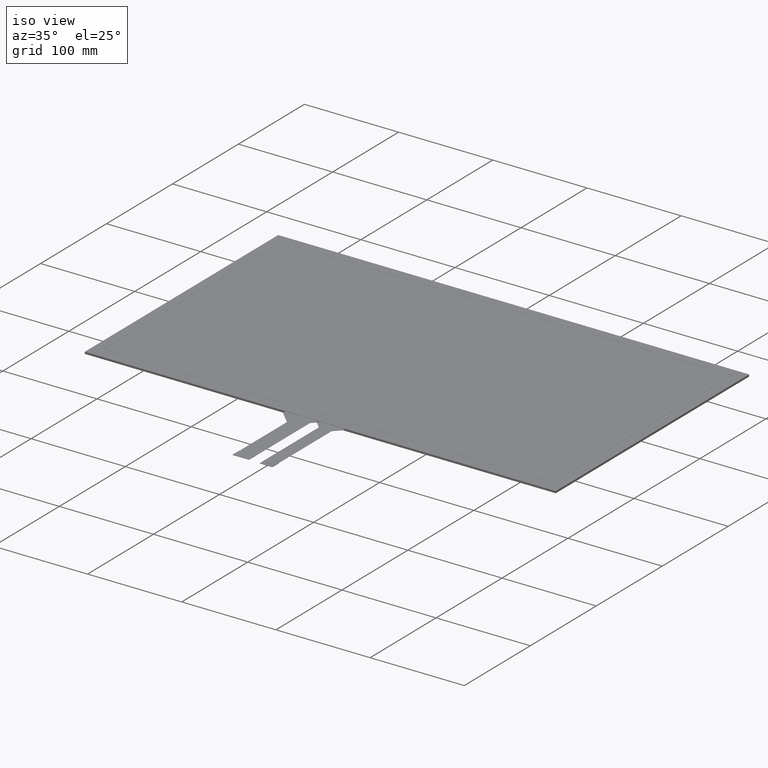
[diagram: clean part render]
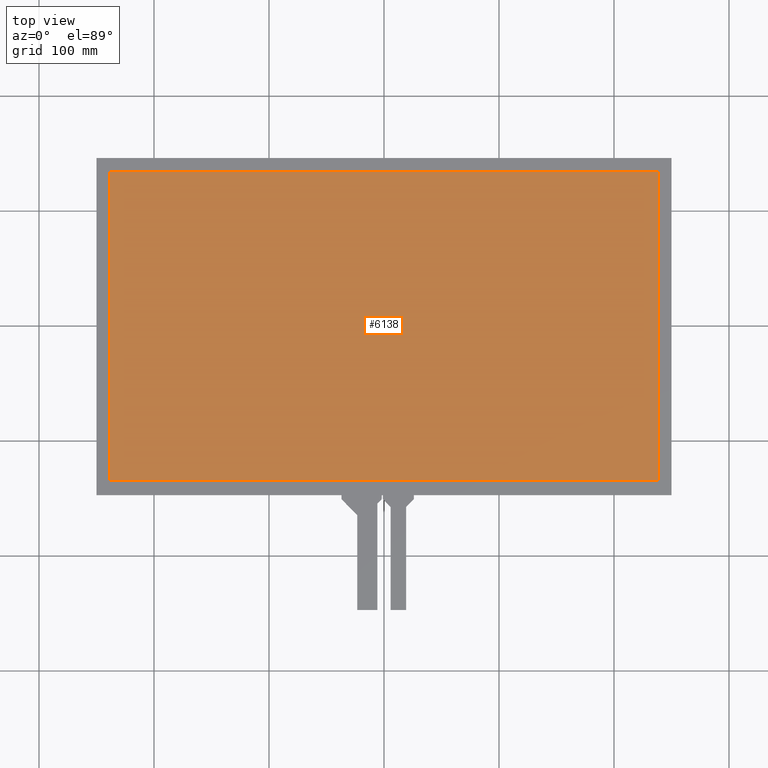
[diagram: tour spotlight — one face highlighted and labeled with its STEP entity id]
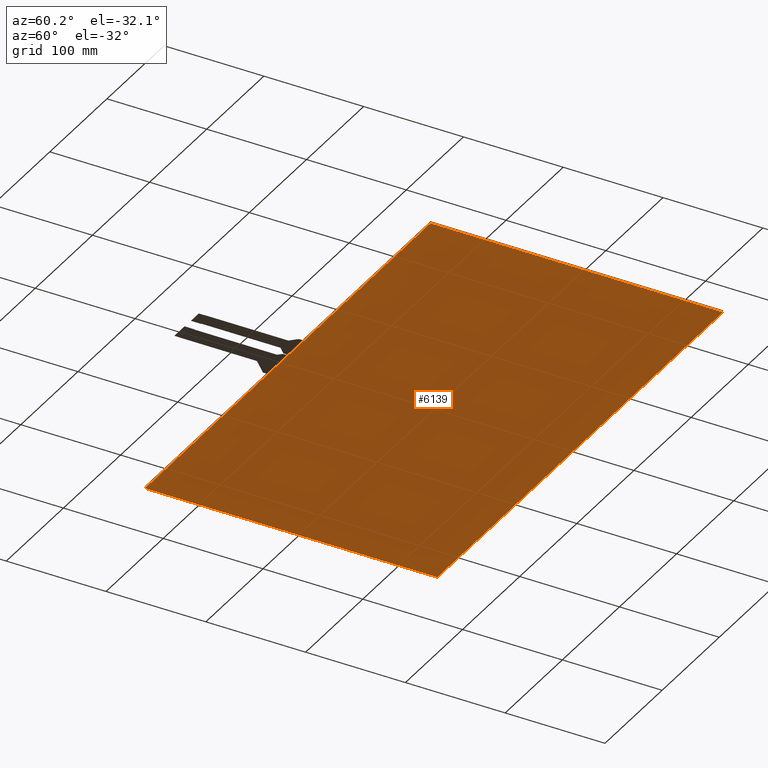
[diagram: tour spotlight — one face highlighted and labeled with its STEP entity id]
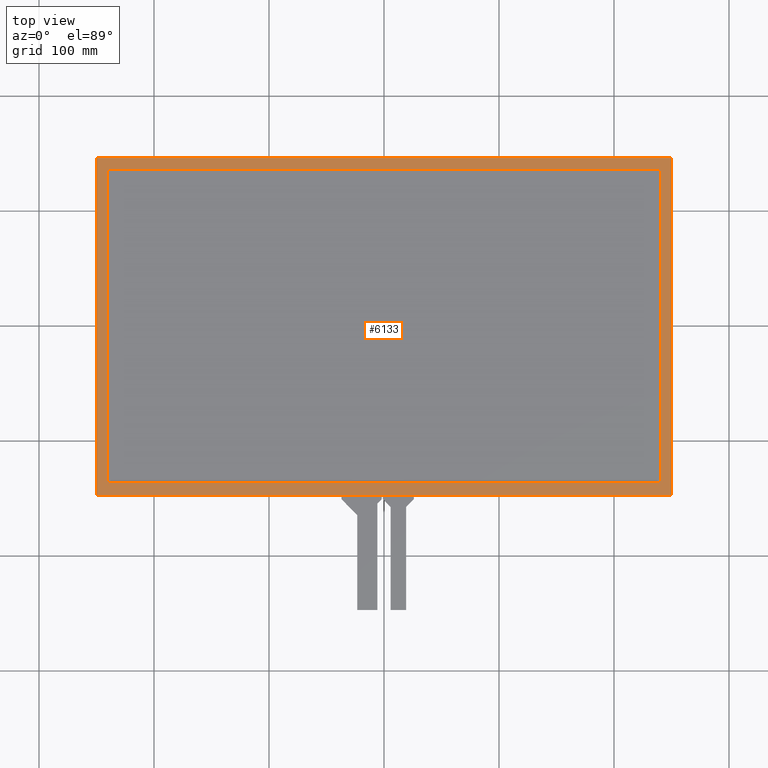
[diagram: tour spotlight — one face highlighted and labeled with its STEP entity id]
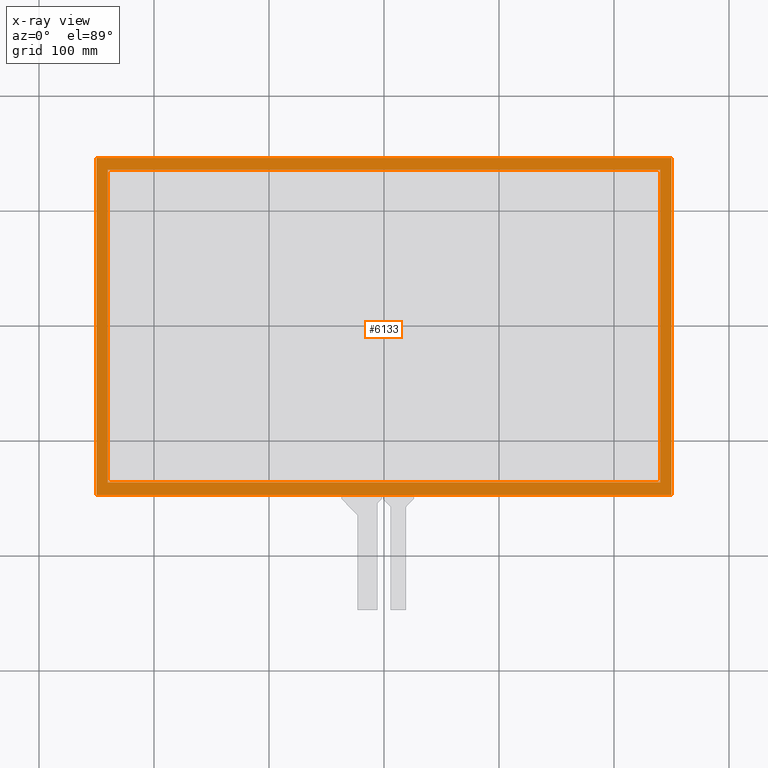
[diagram: x-ray of the same camera — body ghosted, this tour face saturated]
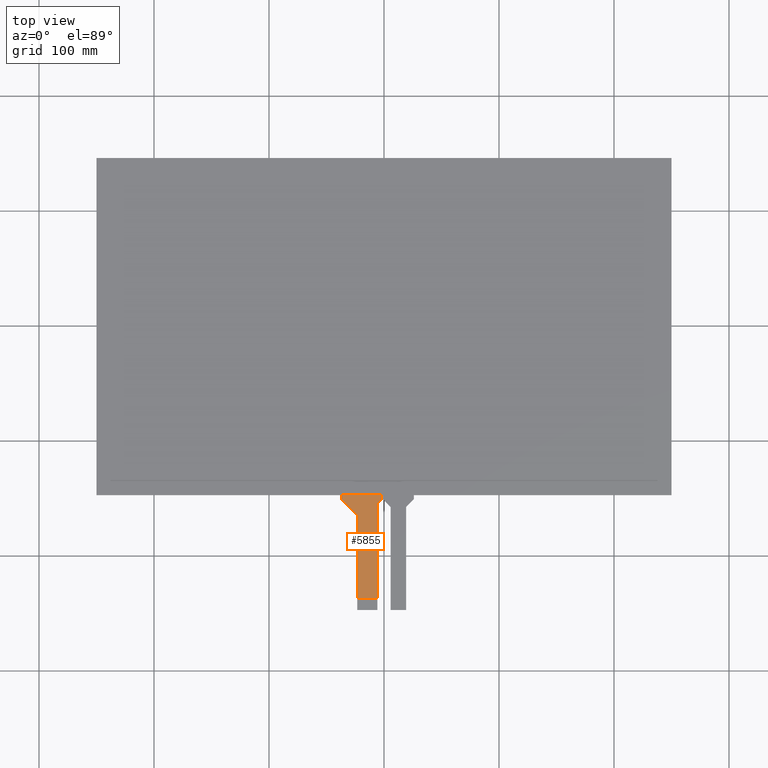
[diagram: tour spotlight — one face highlighted and labeled with its STEP entity id]
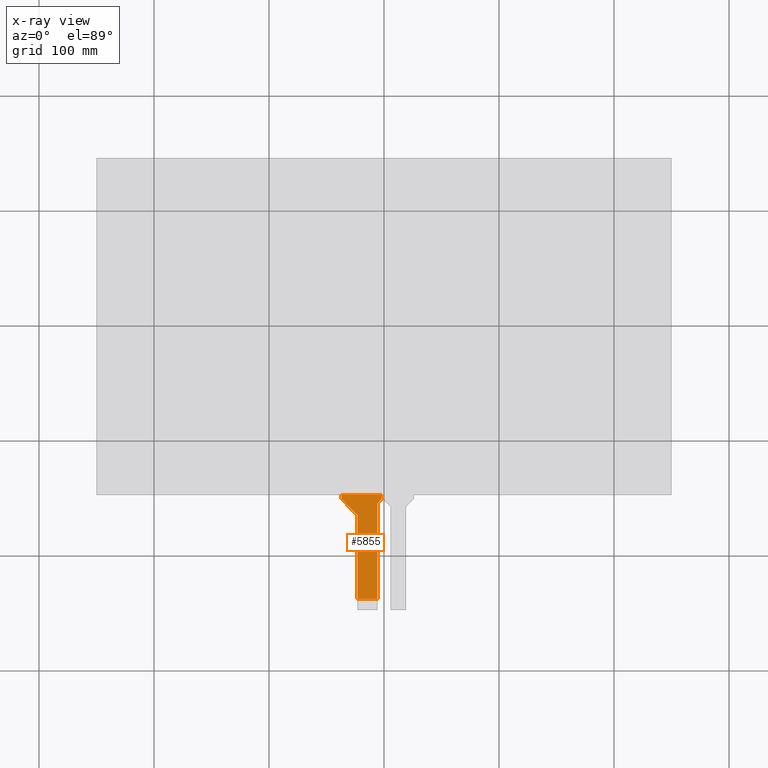
[diagram: x-ray of the same camera — body ghosted, this tour face saturated]
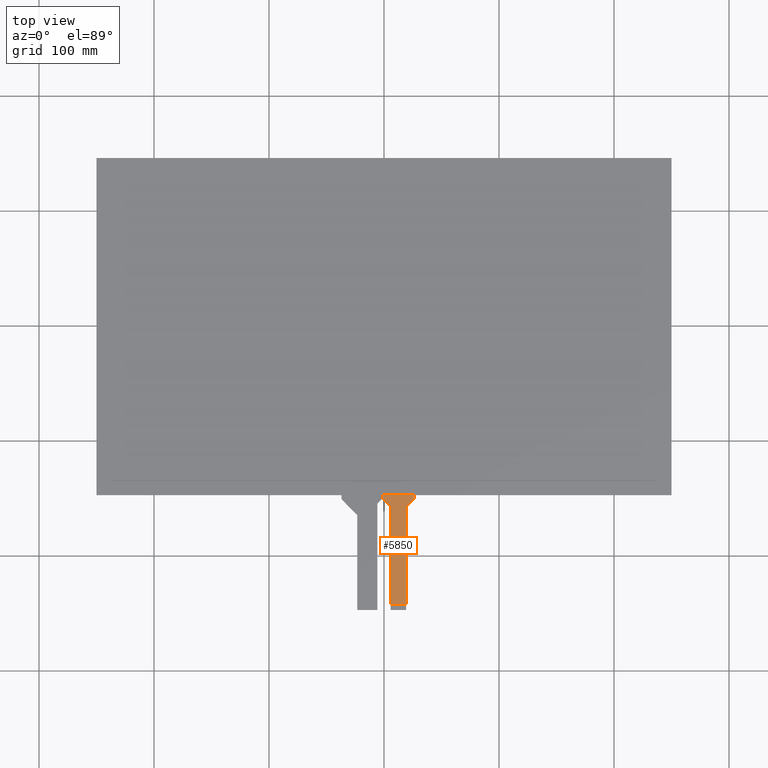
[diagram: tour spotlight — one face highlighted and labeled with its STEP entity id]
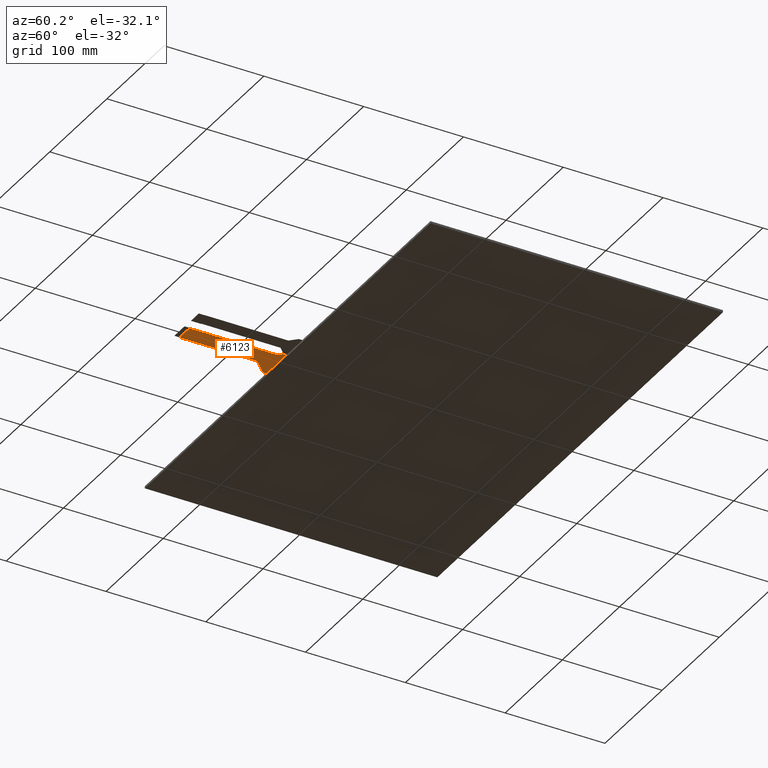
[diagram: tour spotlight — one face highlighted and labeled with its STEP entity id]
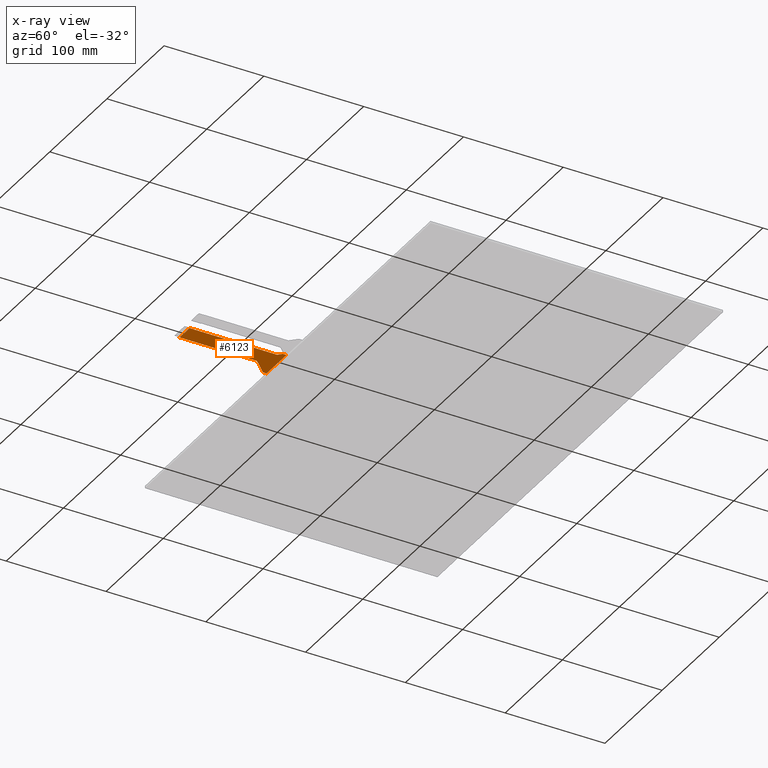
[diagram: x-ray of the same camera — body ghosted, this tour face saturated]
A machine part: a face-by-face anatomy tour. The part has 294 B-rep faces; the first image is the clean iso view, then the 6 largest visible faces are spotlighted one at a time (largest first), each with its STEP entity span.

Face 1 — top view, entity #6138. In plain terms, the highlighted planar face has unit normal (0, 0, 1).
Definition (entity closure, byte-faithful):
#368=PLANE('',#6476);
#662=FACE_OUTER_BOUND('',#960,.T.);
#960=EDGE_LOOP('',(#5826,#5827,#5828,#5829));
#1766=LINE('',#9618,#2606);
#1770=LINE('',#9626,#2610);
#1773=LINE('',#9632,#2613);
#1776=LINE('',#9637,#2616);
#2606=VECTOR('',#7890,10.);
#2610=VECTOR('',#7896,10.);
#2613=VECTOR('',#7901,10.);
#2616=VECTOR('',#7906,10.);
#3218=VERTEX_POINT('',#9616);
#3219=VERTEX_POINT('',#9617);
#3222=VERTEX_POINT('',#9625);
#3224=VERTEX_POINT('',#9631);
#4070=EDGE_CURVE('',#3218,#3219,#1766,.T.);
#4074=EDGE_CURVE('',#3222,#3218,#1770,.T.);
#4077=EDGE_CURVE('',#3224,#3222,#1773,.T.);
#4080=EDGE_CURVE('',#3219,#3224,#1776,.T.);
#5826=ORIENTED_EDGE('',*,*,#4070,.T.);
#5827=ORIENTED_EDGE('',*,*,#4080,.T.);
#5828=ORIENTED_EDGE('',*,*,#4077,.T.);
#5829=ORIENTED_EDGE('',*,*,#4074,.T.);
#6138=ADVANCED_FACE('',(#662),#368,.T.);
#6476=AXIS2_PLACEMENT_3D('',#9689,#7952,#7953);
#7890=DIRECTION('',(1.,0.,0.));
#7896=DIRECTION('',(0.,-1.,0.));
#7901=DIRECTION('',(-1.,0.,0.));
#7906=DIRECTION('',(0.,1.,0.));
#7952=DIRECTION('center_axis',(0.,0.,1.));
#7953=DIRECTION('ref_axis',(1.,0.,0.));
#9616=CARTESIAN_POINT('',(-238.32,-134.055,0.));
#9617=CARTESIAN_POINT('',(238.32,-134.055,0.));
#9618=CARTESIAN_POINT('',(-119.16,-134.055,0.));
#9625=CARTESIAN_POINT('',(-238.32,134.055,0.));
#9626=CARTESIAN_POINT('',(-238.32,66.7775,0.));
#9631=CARTESIAN_POINT('',(238.32,134.055,0.));
#9632=CARTESIAN_POINT('',(119.16,134.055,0.));
#9637=CARTESIAN_POINT('',(238.32,-67.2775,0.));
#9689=CARTESIAN_POINT('Origin',(-3.5527136788005E-14,-0.499999999999998,
0.));

Face 2 — auxiliary view, entity #6139. In plain terms, the highlighted planar face has unit normal (0, 0, -1).
Definition (entity closure, byte-faithful):
#369=PLANE('',#6477);
#663=FACE_OUTER_BOUND('',#961,.T.);
#961=EDGE_LOOP('',(#5830,#5831,#5832,#5833));
#1795=LINE('',#9677,#2635);
#1797=LINE('',#9681,#2637);
#1799=LINE('',#9685,#2639);
#1801=LINE('',#9688,#2641);
#2635=VECTOR('',#7939,10.);
#2637=VECTOR('',#7943,10.);
#2639=VECTOR('',#7947,10.);
#2641=VECTOR('',#7951,10.);
#3238=VERTEX_POINT('',#9674);
#3239=VERTEX_POINT('',#9676);
#3240=VERTEX_POINT('',#9680);
#3241=VERTEX_POINT('',#9684);
#4099=EDGE_CURVE('',#3239,#3238,#1795,.T.);
#4101=EDGE_CURVE('',#3240,#3239,#1797,.T.);
#4103=EDGE_CURVE('',#3241,#3240,#1799,.T.);
#4105=EDGE_CURVE('',#3238,#3241,#1801,.T.);
#5830=ORIENTED_EDGE('',*,*,#4105,.T.);
#5831=ORIENTED_EDGE('',*,*,#4103,.T.);
#5832=ORIENTED_EDGE('',*,*,#4101,.T.);
#5833=ORIENTED_EDGE('',*,*,#4099,.T.);
#6139=ADVANCED_FACE('',(#663),#369,.T.);
#6477=AXIS2_PLACEMENT_3D('',#9690,#7954,#7955);
#7939=DIRECTION('',(-2.42340632933186E-16,1.,0.));
#7943=DIRECTION('',(-1.,-1.06581410364015E-16,0.));
#7947=DIRECTION('',(0.,-1.,0.));
#7951=DIRECTION('',(1.,0.,0.));
#7954=DIRECTION('center_axis',(0.,0.,-1.));
#7955=DIRECTION('ref_axis',(-1.,0.,0.));
#9674=CARTESIAN_POINT('',(-250.,146.1,-2.1));
#9676=CARTESIAN_POINT('',(-250.,-147.1,-2.1));
#9677=CARTESIAN_POINT('',(-250.,146.1,-2.1));
#9680=CARTESIAN_POINT('',(250.,-147.1,-2.1));
#9681=CARTESIAN_POINT('',(-250.,-147.1,-2.1));
#9684=CARTESIAN_POINT('',(250.,146.1,-2.1));
#9685=CARTESIAN_POINT('',(250.,-147.1,-2.1));
#9688=CARTESIAN_POINT('',(250.,146.1,-2.1));
#9690=CARTESIAN_POINT('Origin',(-3.5527136788005E-14,-0.500000000000007,
-2.1));

Face 3 — top view, entity #6133. An x-ray twin of the same camera follows (body ghosted, this face saturated) — the face is partly hidden behind the body. In plain terms, the highlighted planar face has unit normal (0, 0, 1).
Definition (entity closure, byte-faithful):
#85=FACE_BOUND('',#953,.T.);
#363=PLANE('',#6471);
#657=FACE_OUTER_BOUND('',#952,.T.);
#952=EDGE_LOOP('',(#5794,#5795,#5796,#5797));
#953=EDGE_LOOP('',(#5798,#5799,#5800,#5801));
#1778=LINE('',#9642,#2618);
#1782=LINE('',#9650,#2622);
#1785=LINE('',#9656,#2625);
#1788=LINE('',#9661,#2628);
#1790=LINE('',#9667,#2630);
#1791=LINE('',#9669,#2631);
#1792=LINE('',#9671,#2632);
#1793=LINE('',#9672,#2633);
#2618=VECTOR('',#7910,10.);
#2622=VECTOR('',#7916,10.);
#2625=VECTOR('',#7921,10.);
#2628=VECTOR('',#7926,10.);
#2630=VECTOR('',#7932,10.);
#2631=VECTOR('',#7933,10.);
#2632=VECTOR('',#7934,10.);
#2633=VECTOR('',#7935,10.);
#3226=VERTEX_POINT('',#9640);
#3227=VERTEX_POINT('',#9641);
#3230=VERTEX_POINT('',#9649);
#3232=VERTEX_POINT('',#9655);
#3234=VERTEX_POINT('',#9665);
#3235=VERTEX_POINT('',#9666);
#3236=VERTEX_POINT('',#9668);
#3237=VERTEX_POINT('',#9670);
#4082=EDGE_CURVE('',#3226,#3227,#1778,.T.);
#4086=EDGE_CURVE('',#3230,#3226,#1782,.T.);
#4089=EDGE_CURVE('',#3232,#3230,#1785,.T.);
#4092=EDGE_CURVE('',#3227,#3232,#1788,.T.);
#4094=EDGE_CURVE('',#3234,#3235,#1790,.T.);
#4095=EDGE_CURVE('',#3235,#3236,#1791,.T.);
#4096=EDGE_CURVE('',#3236,#3237,#1792,.T.);
#4097=EDGE_CURVE('',#3237,#3234,#1793,.T.);
#5794=ORIENTED_EDGE('',*,*,#4094,.T.);
#5795=ORIENTED_EDGE('',*,*,#4095,.T.);
#5796=ORIENTED_EDGE('',*,*,#4096,.T.);
#5797=ORIENTED_EDGE('',*,*,#4097,.T.);
#5798=ORIENTED_EDGE('',*,*,#4082,.T.);
#5799=ORIENTED_EDGE('',*,*,#4092,.T.);
#5800=ORIENTED_EDGE('',*,*,#4089,.T.);
#5801=ORIENTED_EDGE('',*,*,#4086,.T.);
#6133=ADVANCED_FACE('',(#657,#85),#363,.T.);
#6471=AXIS2_PLACEMENT_3D('',#9664,#7930,#7931);
#7910=DIRECTION('',(-2.61123345617618E-16,1.,0.));
#7916=DIRECTION('',(-1.,-1.10874469836068E-16,0.));
#7921=DIRECTION('',(0.,-1.,0.));
#7926=DIRECTION('',(1.,0.,0.));
#7930=DIRECTION('center_axis',(0.,0.,1.));
#7931=DIRECTION('ref_axis',(1.,0.,0.));
#7932=DIRECTION('',(-1.,0.,0.));
#7933=DIRECTION('',(2.42340632933186E-16,-1.,0.));
#7934=DIRECTION('',(1.,1.06581410364015E-16,0.));
#7935=DIRECTION('',(0.,1.,0.));
#9640=CARTESIAN_POINT('',(-240.32,-136.055,0.));
#9641=CARTESIAN_POINT('',(-240.32,136.055,0.));
#9642=CARTESIAN_POINT('',(-240.32,-68.2775000000001,0.));
#9649=CARTESIAN_POINT('',(240.32,-136.055,0.));
#9650=CARTESIAN_POINT('',(120.16,-136.055,0.));
#9655=CARTESIAN_POINT('',(240.32,136.055,0.));
#9656=CARTESIAN_POINT('',(240.32,67.7775,0.));
#9661=CARTESIAN_POINT('',(-120.16,136.055,0.));
#9664=CARTESIAN_POINT('Origin',(-3.5527136788005E-14,-0.499999999999998,
0.));
#9665=CARTESIAN_POINT('',(250.,146.1,0.));
#9666=CARTESIAN_POINT('',(-250.,146.1,0.));
#9667=CARTESIAN_POINT('',(250.,146.1,0.));
#9668=CARTESIAN_POINT('',(-250.,-147.1,0.));
#9669=CARTESIAN_POINT('',(-250.,146.1,0.));
#9670=CARTESIAN_POINT('',(250.,-147.1,0.));
#9671=CARTESIAN_POINT('',(-250.,-147.1,0.));
#9672=CARTESIAN_POINT('',(250.,-147.1,0.));

Face 4 — top view, entity #5855. An x-ray twin of the same camera follows (body ghosted, this face saturated) — the face is partly hidden behind the body. In plain terms, the highlighted planar face has unit normal (0, 0, 1).
Definition (entity closure, byte-faithful):
#93=PLANE('',#6179);
#379=FACE_OUTER_BOUND('',#673,.T.);
#673=EDGE_LOOP('',(#4158,#4159,#4160,#4161,#4162,#4163,#4164,#4165,#4166,
#4167,#4168,#4169));
#983=LINE('',#8019,#1823);
#993=LINE('',#8042,#1833);
#994=LINE('',#8045,#1834);
#995=LINE('',#8047,#1835);
#996=LINE('',#8049,#1836);
#997=LINE('',#8053,#1837);
#998=LINE('',#8057,#1838);
#999=LINE('',#8058,#1839);
#1823=VECTOR('',#6531,10.);
#1833=VECTOR('',#6549,10.);
#1834=VECTOR('',#6552,10.);
#1835=VECTOR('',#6553,10.);
#1836=VECTOR('',#6554,10.);
#1837=VECTOR('',#6557,10.);
#1838=VECTOR('',#6560,10.);
#1839=VECTOR('',#6561,10.);
#2648=CIRCLE('',#6172,1.);
#2651=CIRCLE('',#6177,1.);
#2652=CIRCLE('',#6180,1.);
#2653=CIRCLE('',#6181,1.);
#2687=VERTEX_POINT('',#8009);
#2688=VERTEX_POINT('',#8010);
#2691=VERTEX_POINT('',#8018);
#2699=VERTEX_POINT('',#8035);
#2700=VERTEX_POINT('',#8037);
#2701=VERTEX_POINT('',#8044);
#2702=VERTEX_POINT('',#8046);
#2703=VERTEX_POINT('',#8048);
#2704=VERTEX_POINT('',#8050);
#2705=VERTEX_POINT('',#8052);
#2706=VERTEX_POINT('',#8054);
#2707=VERTEX_POINT('',#8056);
#3267=EDGE_CURVE('',#2687,#2688,#2648,.T.);
#3271=EDGE_CURVE('',#2691,#2688,#983,.T.);
#3280=EDGE_CURVE('',#2699,#2700,#2651,.T.);
#3283=EDGE_CURVE('',#2687,#2700,#993,.T.);
#3284=EDGE_CURVE('',#2699,#2701,#994,.T.);
#3285=EDGE_CURVE('',#2702,#2701,#995,.T.);
#3286=EDGE_CURVE('',#2702,#2703,#996,.T.);
#3287=EDGE_CURVE('',#2704,#2703,#2652,.T.);
#3288=EDGE_CURVE('',#2704,#2705,#997,.T.);
#3289=EDGE_CURVE('',#2706,#2705,#2653,.T.);
#3290=EDGE_CURVE('',#2706,#2707,#998,.T.);
#3291=EDGE_CURVE('',#2707,#2691,#999,.T.);
#4158=ORIENTED_EDGE('',*,*,#3280,.F.);
#4159=ORIENTED_EDGE('',*,*,#3284,.T.);
#4160=ORIENTED_EDGE('',*,*,#3285,.F.);
#4161=ORIENTED_EDGE('',*,*,#3286,.T.);
#4162=ORIENTED_EDGE('',*,*,#3287,.F.);
#4163=ORIENTED_EDGE('',*,*,#3288,.T.);
#4164=ORIENTED_EDGE('',*,*,#3289,.F.);
#4165=ORIENTED_EDGE('',*,*,#3290,.T.);
#4166=ORIENTED_EDGE('',*,*,#3291,.T.);
#4167=ORIENTED_EDGE('',*,*,#3271,.T.);
#4168=ORIENTED_EDGE('',*,*,#3267,.F.);
#4169=ORIENTED_EDGE('',*,*,#3283,.T.);
#5855=ADVANCED_FACE('',(#379),#93,.T.);
#6172=AXIS2_PLACEMENT_3D('',#8011,#6523,#6524);
#6177=AXIS2_PLACEMENT_3D('',#8038,#6543,#6544);
#6179=AXIS2_PLACEMENT_3D('',#8043,#6550,#6551);
#6180=AXIS2_PLACEMENT_3D('',#8051,#6555,#6556);
#6181=AXIS2_PLACEMENT_3D('',#8055,#6558,#6559);
#6523=DIRECTION('center_axis',(0.,0.,1.));
#6524=DIRECTION('ref_axis',(-0.923531889914345,0.383521639951696,0.));
#6531=DIRECTION('',(-4.79248887762603E-16,1.,0.));
#6543=DIRECTION('center_axis',(0.,0.,-1.));
#6544=DIRECTION('ref_axis',(0.923531889914345,-0.383521639951696,0.));
#6549=DIRECTION('',(0.708388929935267,0.705822303377534,0.));
#6550=DIRECTION('center_axis',(0.,0.,1.));
#6551=DIRECTION('ref_axis',(1.,0.,0.));
#6552=DIRECTION('',(-1.2335811384724E-15,1.,0.));
#6553=DIRECTION('',(1.,1.06581410364015E-16,0.));
#6554=DIRECTION('',(0.,-1.,0.));
#6555=DIRECTION('center_axis',(0.,0.,-1.));
#6556=DIRECTION('ref_axis',(-0.92422641434209,-0.381844909658835,0.));
#6557=DIRECTION('',(0.705822303377532,-0.708388929935268,0.));
#6558=DIRECTION('center_axis',(0.,0.,1.));
#6559=DIRECTION('ref_axis',(0.924226414342097,0.381844909658817,0.));
#6560=DIRECTION('',(1.61291480575083E-16,-1.,0.));
#6561=DIRECTION('',(1.,0.,0.));
#8009=CARTESIAN_POINT('',(-5.45582230337757,-154.143301208075,-0.2));
#8010=CARTESIAN_POINT('',(-5.75000000000004,-154.851690138011,-0.2));
#8011=CARTESIAN_POINT('Origin',(-4.75000000000004,-154.851690138011,-0.2));
#8018=CARTESIAN_POINT('',(-5.74999999999999,-237.1,-0.2));
#8019=CARTESIAN_POINT('',(-5.74999999999999,-247.1,-0.2));
#8035=CARTESIAN_POINT('',(-2.00000000000004,-150.284722905468,-0.2));
#8037=CARTESIAN_POINT('',(-2.2941776966225,-150.993111835403,-0.2));
#8038=CARTESIAN_POINT('Origin',(-3.00000000000004,-150.284722905468,-0.2));
#8042=CARTESIAN_POINT('',(-5.75000000000004,-154.436413043478,-0.2));
#8043=CARTESIAN_POINT('Origin',(-19.5,-197.1,-0.2));
#8044=CARTESIAN_POINT('',(-2.00000000000004,-147.1,-0.2));
#8045=CARTESIAN_POINT('',(-2.00000000000004,-150.7,-0.2));
#8046=CARTESIAN_POINT('',(-37.,-147.1,-0.2));
#8047=CARTESIAN_POINT('',(115.25,-147.1,-0.2));
#8048=CARTESIAN_POINT('',(-37.,-150.286849170578,-0.2));
#8049=CARTESIAN_POINT('',(-37.,-147.1,-0.2));
#8050=CARTESIAN_POINT('',(-36.7083889299353,-150.992671473956,-0.2));
#8051=CARTESIAN_POINT('Origin',(-36.,-150.286849170578,-0.2));
#8052=CARTESIAN_POINT('',(-23.5416110700647,-164.207328526044,-0.2));
#8053=CARTESIAN_POINT('',(-37.,-150.7,-0.2));
#8054=CARTESIAN_POINT('',(-23.25,-164.913150829422,-0.2));
#8055=CARTESIAN_POINT('Origin',(-24.25,-164.913150829422,-0.2));
#8056=CARTESIAN_POINT('',(-23.25,-237.1,-0.2));
#8057=CARTESIAN_POINT('',(-23.25,-164.5,-0.2));
#8058=CARTESIAN_POINT('',(-12.625,-237.1,-0.2));

Face 5 — top view, entity #5850. In plain terms, the highlighted planar face has unit normal (0, 0, 1).
Definition (entity closure, byte-faithful):
#90=PLANE('',#6168);
#374=FACE_OUTER_BOUND('',#668,.T.);
#668=EDGE_LOOP('',(#4126,#4127,#4128,#4129,#4130,#4131,#4132,#4133,#4134,
#4135,#4136,#4137));
#964=LINE('',#7968,#1804);
#974=LINE('',#7991,#1814);
#975=LINE('',#7994,#1815);
#976=LINE('',#7996,#1816);
#977=LINE('',#7998,#1817);
#978=LINE('',#8002,#1818);
#979=LINE('',#8006,#1819);
#980=LINE('',#8007,#1820);
#1804=VECTOR('',#6490,10.);
#1814=VECTOR('',#6508,10.);
#1815=VECTOR('',#6511,10.);
#1816=VECTOR('',#6512,10.);
#1817=VECTOR('',#6513,10.);
#1818=VECTOR('',#6516,10.);
#1819=VECTOR('',#6519,10.);
#1820=VECTOR('',#6520,10.);
#2642=CIRCLE('',#6161,1.);
#2645=CIRCLE('',#6166,1.);
#2646=CIRCLE('',#6169,1.);
#2647=CIRCLE('',#6170,1.);
#2666=VERTEX_POINT('',#7958);
#2667=VERTEX_POINT('',#7959);
#2670=VERTEX_POINT('',#7967);
#2678=VERTEX_POINT('',#7984);
#2679=VERTEX_POINT('',#7986);
#2680=VERTEX_POINT('',#7993);
#2681=VERTEX_POINT('',#7995);
#2682=VERTEX_POINT('',#7997);
#2683=VERTEX_POINT('',#7999);
#2684=VERTEX_POINT('',#8001);
#2685=VERTEX_POINT('',#8003);
#2686=VERTEX_POINT('',#8005);
#3242=EDGE_CURVE('',#2666,#2667,#2642,.T.);
#3246=EDGE_CURVE('',#2670,#2667,#964,.T.);
#3255=EDGE_CURVE('',#2678,#2679,#2645,.T.);
#3258=EDGE_CURVE('',#2666,#2679,#974,.T.);
#3259=EDGE_CURVE('',#2678,#2680,#975,.T.);
#3260=EDGE_CURVE('',#2681,#2680,#976,.T.);
#3261=EDGE_CURVE('',#2681,#2682,#977,.T.);
#3262=EDGE_CURVE('',#2683,#2682,#2646,.T.);
#3263=EDGE_CURVE('',#2683,#2684,#978,.T.);
#3264=EDGE_CURVE('',#2685,#2684,#2647,.T.);
#3265=EDGE_CURVE('',#2685,#2686,#979,.T.);
#3266=EDGE_CURVE('',#2686,#2670,#980,.T.);
#4126=ORIENTED_EDGE('',*,*,#3255,.F.);
#4127=ORIENTED_EDGE('',*,*,#3259,.T.);
#4128=ORIENTED_EDGE('',*,*,#3260,.F.);
#4129=ORIENTED_EDGE('',*,*,#3261,.T.);
#4130=ORIENTED_EDGE('',*,*,#3262,.F.);
#4131=ORIENTED_EDGE('',*,*,#3263,.T.);
#4132=ORIENTED_EDGE('',*,*,#3264,.F.);
#4133=ORIENTED_EDGE('',*,*,#3265,.T.);
#4134=ORIENTED_EDGE('',*,*,#3266,.T.);
#4135=ORIENTED_EDGE('',*,*,#3246,.T.);
#4136=ORIENTED_EDGE('',*,*,#3242,.F.);
#4137=ORIENTED_EDGE('',*,*,#3258,.T.);
#5850=ADVANCED_FACE('',(#374),#90,.T.);
#6161=AXIS2_PLACEMENT_3D('',#7960,#6482,#6483);
#6166=AXIS2_PLACEMENT_3D('',#7987,#6502,#6503);
#6168=AXIS2_PLACEMENT_3D('',#7992,#6509,#6510);
#6169=AXIS2_PLACEMENT_3D('',#8000,#6514,#6515);
#6170=AXIS2_PLACEMENT_3D('',#8004,#6517,#6518);
#6482=DIRECTION('center_axis',(0.,0.,1.));
#6483=DIRECTION('ref_axis',(-0.923166632761983,0.384400010607313,0.));
#6490=DIRECTION('',(-4.9508273115949E-16,1.,0.));
#6502=DIRECTION('center_axis',(0.,0.,-1.));
#6503=DIRECTION('ref_axis',(0.923166632761977,-0.384400010607327,0.));
#6508=DIRECTION('',(0.709730526852055,0.704473263690187,0.));
#6509=DIRECTION('center_axis',(0.,0.,1.));
#6510=DIRECTION('ref_axis',(1.,0.,0.));
#6511=DIRECTION('',(2.46716227694481E-15,1.,0.));
#6512=DIRECTION('',(1.,1.06581410364015E-16,0.));
#6513=DIRECTION('',(1.23358113847239E-15,-1.,0.));
#6514=DIRECTION('center_axis',(0.,0.,-1.));
#6515=DIRECTION('ref_axis',(-0.924589240379761,-0.380965532002538,0.));
#6516=DIRECTION('',(0.704473263690187,-0.709730526852056,0.));
#6517=DIRECTION('center_axis',(0.,0.,1.));
#6518=DIRECTION('ref_axis',(0.92458924037976,0.38096553200254,0.));
#6519=DIRECTION('',(1.48691202871585E-16,-1.,0.));
#6520=DIRECTION('',(1.,0.,0.));
#7958=CARTESIAN_POINT('',(19.5455267363098,-157.106662350626,-0.2));
#7959=CARTESIAN_POINT('',(19.25,-157.816392877478,-0.2));
#7960=CARTESIAN_POINT('Origin',(20.25,-157.816392877478,-0.2));
#7967=CARTESIAN_POINT('',(19.25,-242.1,-0.2));
#7968=CARTESIAN_POINT('',(19.25,-247.1,-0.2));
#7984=CARTESIAN_POINT('',(26.,-150.283607122522,-0.2));
#7986=CARTESIAN_POINT('',(25.7044732636902,-150.993337649374,-0.2));
#7987=CARTESIAN_POINT('Origin',(25.,-150.283607122522,-0.2));
#7991=CARTESIAN_POINT('',(19.25,-157.4,-0.2));
#7992=CARTESIAN_POINT('Origin',(12.5,-197.1,-0.2));
#7993=CARTESIAN_POINT('',(26.,-147.1,-0.2));
#7994=CARTESIAN_POINT('',(26.,-150.7,-0.2));
#7995=CARTESIAN_POINT('',(-0.999999999999979,-147.1,-0.2));
#7996=CARTESIAN_POINT('',(131.25,-147.1,-0.2));
#7997=CARTESIAN_POINT('',(-0.999999999999975,-150.287962399556,-0.2));
#7998=CARTESIAN_POINT('',(-0.999999999999979,-147.1,-0.2));
#7999=CARTESIAN_POINT('',(-0.709730526852037,-150.992435663246,-0.2));
#8000=CARTESIAN_POINT('Origin',(2.60902410786912E-14,-150.287962399556,
-0.2));
#8001=CARTESIAN_POINT('',(5.45973052685208,-157.207937471082,-0.2));
#8002=CARTESIAN_POINT('',(-0.999999999999974,-150.7,-0.2));
#8003=CARTESIAN_POINT('',(5.75000000000002,-157.912410734772,-0.2));
#8004=CARTESIAN_POINT('Origin',(4.75000000000002,-157.912410734772,-0.2));
#8005=CARTESIAN_POINT('',(5.75000000000004,-242.1,-0.2));
#8006=CARTESIAN_POINT('',(5.75000000000002,-157.500373134328,-0.2));
#8007=CARTESIAN_POINT('',(9.12500000000003,-242.1,-0.2));

Face 6 — auxiliary view, entity #6123. An x-ray twin of the same camera follows (body ghosted, this face saturated) — the face is partly hidden behind the body. In plain terms, the highlighted planar face has unit normal (0, 0, -1).
Definition (entity closure, byte-faithful):
#353=PLANE('',#6461);
#647=FACE_OUTER_BOUND('',#941,.T.);
#941=EDGE_LOOP('',(#5742,#5743,#5744,#5745,#5746,#5747,#5748,#5749,#5750,
#5751,#5752,#5753));
#989=LINE('',#8030,#1829);
#992=LINE('',#8041,#1832);
#1008=LINE('',#8082,#1848);
#1746=LINE('',#9576,#2586);
#1747=LINE('',#9578,#2587);
#1762=LINE('',#9608,#2602);
#1763=LINE('',#9611,#2603);
#1765=LINE('',#9614,#2605);
#1829=VECTOR('',#6537,10.);
#1832=VECTOR('',#6548,10.);
#1848=VECTOR('',#6586,10.);
#2586=VECTOR('',#7844,10.);
#2587=VECTOR('',#7847,10.);
#2602=VECTOR('',#7880,10.);
#2603=VECTOR('',#7883,10.);
#2605=VECTOR('',#7887,10.);
#2649=CIRCLE('',#6173,1.);
#2650=CIRCLE('',#6176,1.);
#2656=CIRCLE('',#6188,1.);
#2657=CIRCLE('',#6191,1.);
#2689=VERTEX_POINT('',#8012);
#2690=VERTEX_POINT('',#8014);
#2696=VERTEX_POINT('',#8028);
#2697=VERTEX_POINT('',#8032);
#2698=VERTEX_POINT('',#8033);
#2712=VERTEX_POINT('',#8074);
#2713=VERTEX_POINT('',#8076);
#2714=VERTEX_POINT('',#8080);
#2715=VERTEX_POINT('',#8084);
#3210=VERTEX_POINT('',#9574);
#3216=VERTEX_POINT('',#9606);
#3217=VERTEX_POINT('',#9610);
#3269=EDGE_CURVE('',#2689,#2690,#2649,.T.);
#3277=EDGE_CURVE('',#2689,#2696,#989,.T.);
#3278=EDGE_CURVE('',#2697,#2698,#2650,.T.);
#3282=EDGE_CURVE('',#2697,#2690,#992,.T.);
#3300=EDGE_CURVE('',#2712,#2713,#2656,.T.);
#3303=EDGE_CURVE('',#2712,#2714,#1008,.T.);
#3304=EDGE_CURVE('',#2715,#2714,#2657,.T.);
#4050=EDGE_CURVE('',#2696,#3210,#1746,.T.);
#4051=EDGE_CURVE('',#3210,#2713,#1747,.T.);
#4066=EDGE_CURVE('',#2715,#3216,#1762,.T.);
#4067=EDGE_CURVE('',#3217,#2698,#1763,.T.);
#4069=EDGE_CURVE('',#3217,#3216,#1765,.T.);
#5742=ORIENTED_EDGE('',*,*,#3278,.F.);
#5743=ORIENTED_EDGE('',*,*,#3282,.T.);
#5744=ORIENTED_EDGE('',*,*,#3269,.F.);
#5745=ORIENTED_EDGE('',*,*,#3277,.T.);
#5746=ORIENTED_EDGE('',*,*,#4050,.T.);
#5747=ORIENTED_EDGE('',*,*,#4051,.T.);
#5748=ORIENTED_EDGE('',*,*,#3300,.F.);
#5749=ORIENTED_EDGE('',*,*,#3303,.T.);
#5750=ORIENTED_EDGE('',*,*,#3304,.F.);
#5751=ORIENTED_EDGE('',*,*,#4066,.T.);
#5752=ORIENTED_EDGE('',*,*,#4069,.F.);
#5753=ORIENTED_EDGE('',*,*,#4067,.T.);
#6123=ADVANCED_FACE('',(#647),#353,.T.);
#6173=AXIS2_PLACEMENT_3D('',#8015,#6526,#6527);
#6176=AXIS2_PLACEMENT_3D('',#8034,#6540,#6541);
#6188=AXIS2_PLACEMENT_3D('',#8077,#6580,#6581);
#6191=AXIS2_PLACEMENT_3D('',#8085,#6589,#6590);
#6461=AXIS2_PLACEMENT_3D('',#9613,#7885,#7886);
#6526=DIRECTION('center_axis',(0.,0.,-1.));
#6527=DIRECTION('ref_axis',(-0.923531889914345,0.383521639951696,0.));
#6537=DIRECTION('',(4.79248887762603E-16,-1.,0.));
#6540=DIRECTION('center_axis',(0.,0.,1.));
#6541=DIRECTION('ref_axis',(0.923531889914345,-0.383521639951696,0.));
#6548=DIRECTION('',(-0.708388929935267,-0.705822303377534,0.));
#6580=DIRECTION('center_axis',(0.,0.,-1.));
#6581=DIRECTION('ref_axis',(0.924226414342097,0.381844909658817,0.));
#6586=DIRECTION('',(-0.705822303377532,0.708388929935268,0.));
#6589=DIRECTION('center_axis',(0.,0.,1.));
#6590=DIRECTION('ref_axis',(-0.92422641434209,-0.381844909658835,0.));
#7844=DIRECTION('',(-1.,2.03012210217171E-15,0.));
#7847=DIRECTION('',(-1.61291480575083E-16,1.,0.));
#7880=DIRECTION('',(0.,1.,0.));
#7883=DIRECTION('',(1.2335811384724E-15,-1.,0.));
#7885=DIRECTION('center_axis',(0.,0.,-1.));
#7886=DIRECTION('ref_axis',(-1.,0.,0.));
#7887=DIRECTION('',(-1.,-1.06581410364015E-16,0.));
#8012=CARTESIAN_POINT('',(-5.75000000000004,-154.851690138011,-0.3));
#8014=CARTESIAN_POINT('',(-5.45582230337757,-154.143301208075,-0.3));
#8015=CARTESIAN_POINT('Origin',(-4.75000000000004,-154.851690138011,-0.3));
#8028=CARTESIAN_POINT('',(-5.74999999999999,-242.1,-0.3));
#8030=CARTESIAN_POINT('',(-5.74999999999999,-247.1,-0.3));
#8032=CARTESIAN_POINT('',(-2.2941776966225,-150.993111835403,-0.3));
#8033=CARTESIAN_POINT('',(-2.00000000000004,-150.284722905468,-0.3));
#8034=CARTESIAN_POINT('Origin',(-3.00000000000004,-150.284722905468,-0.3));
#8041=CARTESIAN_POINT('',(-5.75000000000004,-154.436413043478,-0.3));
#8074=CARTESIAN_POINT('',(-23.5416110700647,-164.207328526044,-0.3));
#8076=CARTESIAN_POINT('',(-23.25,-164.913150829422,-0.3));
#8077=CARTESIAN_POINT('Origin',(-24.25,-164.913150829422,-0.3));
#8080=CARTESIAN_POINT('',(-36.7083889299353,-150.992671473956,-0.3));
#8082=CARTESIAN_POINT('',(-37.,-150.7,-0.3));
#8084=CARTESIAN_POINT('',(-37.,-150.286849170578,-0.3));
#8085=CARTESIAN_POINT('Origin',(-36.,-150.286849170578,-0.3));
#9574=CARTESIAN_POINT('',(-23.25,-242.1,-0.3));
#9576=CARTESIAN_POINT('',(-12.6250000000001,-242.1,-0.3));
#9578=CARTESIAN_POINT('',(-23.25,-164.5,-0.3));
#9606=CARTESIAN_POINT('',(-37.,-147.1,-0.3));
#9608=CARTESIAN_POINT('',(-37.,-147.1,-0.3));
#9610=CARTESIAN_POINT('',(-2.00000000000004,-147.1,-0.3));
#9611=CARTESIAN_POINT('',(-2.00000000000004,-150.7,-0.3));
#9613=CARTESIAN_POINT('Origin',(-19.5,-197.1,-0.3));
#9614=CARTESIAN_POINT('',(115.25,-147.1,-0.3));